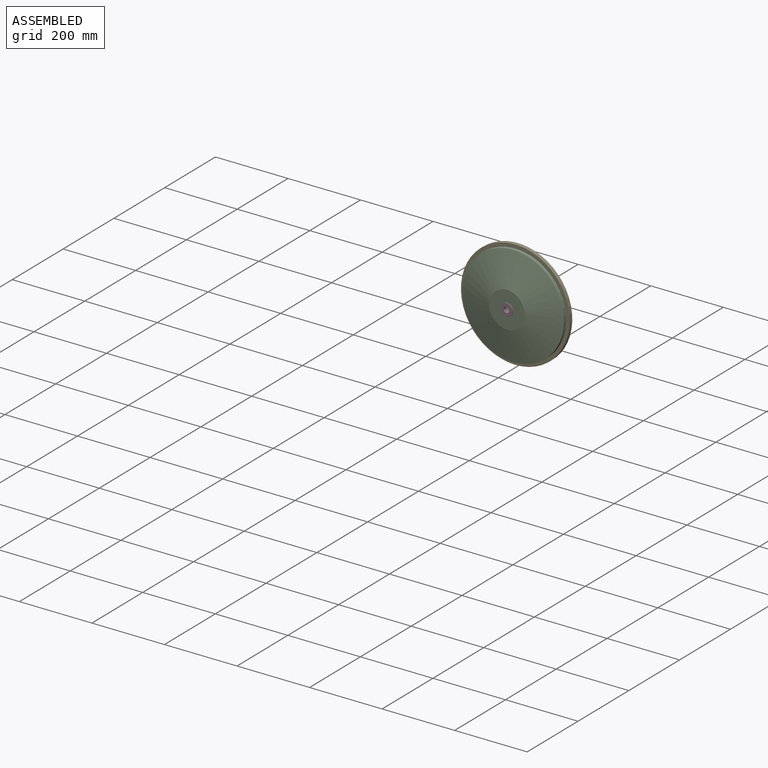
[diagram: assembled view]
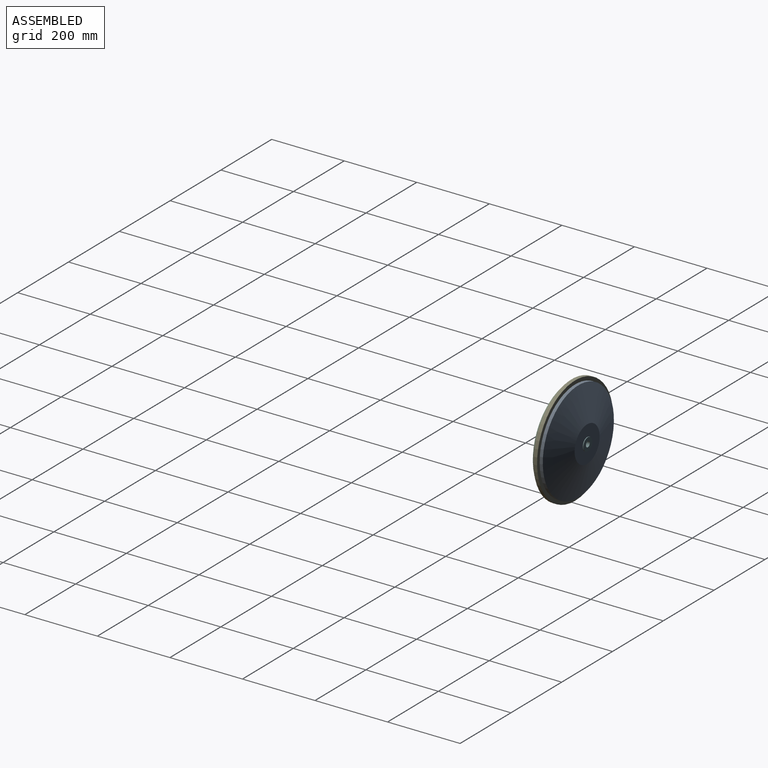
[diagram: assembled view, second angle]
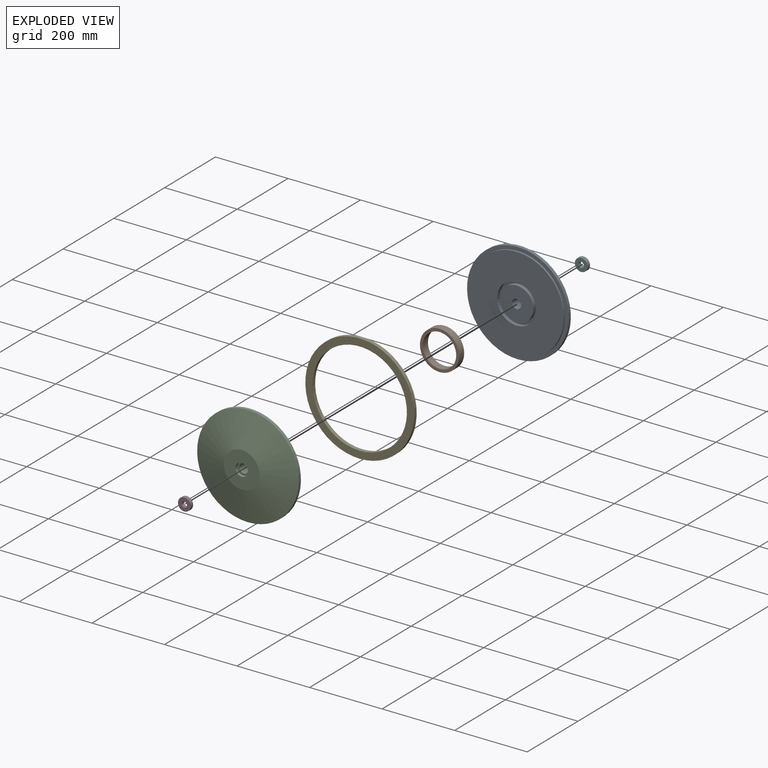
[diagram: exploded view]
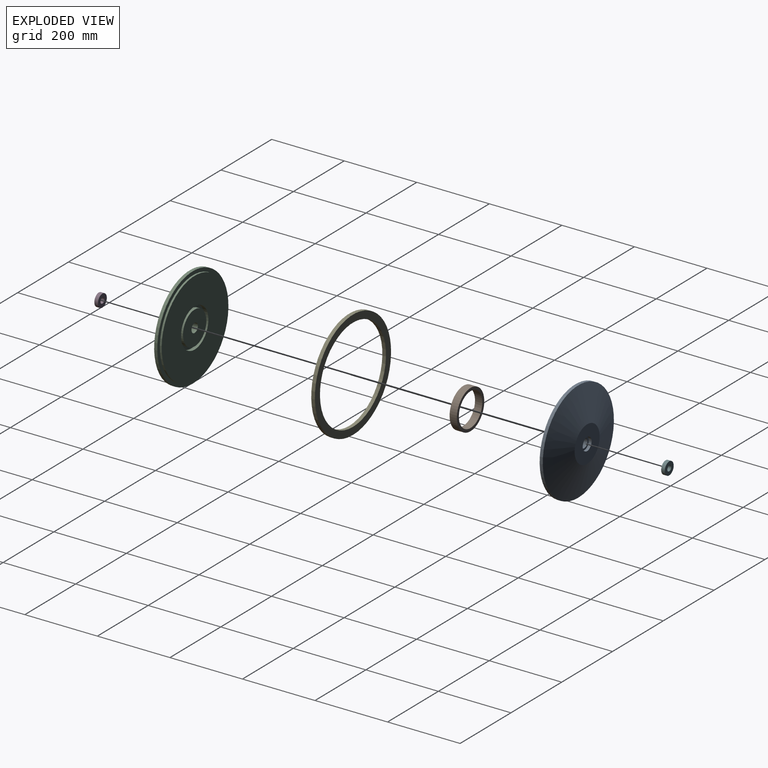
[diagram: exploded view, second angle]
ASSEMBLY  parts=6 mates=5
PART A: 13 faces, bbox 280x38x280 mm
  f0: cylinder r=17.5mm len=35mm, axis (0,-1,0), area 879.6mm2, adj f1,f12
  f1: plane 98.66x98.66mm, normal (0,1,0), area 6682.6mm2, adj f0,f2
  f2: cone r=140mm half-angle=75deg, axis (0,-1,0), area 55832.9mm2, adj f1,f3
  f3: cylinder r=140mm len=280mm, axis (0,-1,0), area 7657.2mm2, adj f2,f4
  f4: plane 280x280mm, normal (0,-1,0), area 8482.3mm2, adj f3,f5
  f5: cylinder r=130mm len=260mm, axis (0,-1,0), area 4084.1mm2, adj f4,f6
  f6: plane 260x260mm, normal (0,-1,0), area 43932mm2, adj f5,f7
  f7: cylinder r=54mm len=108mm, axis (0,-1,0), area 3392.9mm2, adj f6,f8
  f8: plane 108x108mm, normal (0,-1,0), area 2513.3mm2, adj f7,f9
  f9: cylinder r=46mm len=92mm, axis (0,-1,0), area 2890.3mm2, adj f8,f10
  f10: plane 92x92mm, normal (0,-1,0), area 6156.7mm2, adj f9,f11
  f11: cylinder r=12.5mm len=30mm, axis (0,-1,0), area 2356.2mm2, adj f10,f12
  f12: plane 35x35mm, normal (0,1,0), area 471.2mm2, adj f0,f11
PART B: 4 faces, bbox 108x20x108 mm
  f0: plane 108x108mm, normal (0,1,0), area 2513.3mm2, adj f1,f3
  f1: cylinder r=54mm len=108mm, axis (0,-1,0), area 6785.8mm2, adj f0,f2
  f2: plane 108x108mm, normal (0,-1,0), area 2513.3mm2, adj f1,f3
  f3: cylinder r=46mm len=92mm, axis (0,-1,0), area 5780.5mm2, adj f0,f2
PART C: 13 faces, bbox 280x38x280 mm
  f0: cylinder r=17.5mm len=35mm, axis (0,1,0), area 879.6mm2, adj f1,f12
  f1: plane 98.66x98.66mm, normal (0,-1,0), area 6682.6mm2, adj f0,f2
  f2: cone r=140mm half-angle=75deg, axis (0,1,0), area 55832.9mm2, adj f1,f3
  f3: cylinder r=140mm len=280mm, axis (0,1,0), area 7657.2mm2, adj f2,f4
  f4: plane 280x280mm, normal (0,1,0), area 8482.3mm2, adj f3,f5
  f5: cylinder r=130mm len=260mm, axis (0,1,0), area 4084.1mm2, adj f4,f6
  f6: plane 260x260mm, normal (0,1,0), area 43932mm2, adj f5,f7
  f7: cylinder r=54mm len=108mm, axis (0,1,0), area 3392.9mm2, adj f6,f8
  f8: plane 108x108mm, normal (0,1,0), area 2513.3mm2, adj f7,f9
  f9: cylinder r=46mm len=92mm, axis (0,1,0), area 2890.3mm2, adj f8,f10
  f10: plane 92x92mm, normal (0,1,0), area 6156.7mm2, adj f9,f11
  f11: cylinder r=12.5mm len=30mm, axis (0,1,0), area 2356.2mm2, adj f10,f12
  f12: plane 35x35mm, normal (0,-1,0), area 471.2mm2, adj f0,f11
PART D: 4 faces, bbox 35x10x35 mm
  f0: cylinder r=17.5mm len=35mm, axis (0,1,0), area 1099.6mm2, adj f1,f3
  f1: plane 35x35mm, normal (0,1,0), area 785.4mm2, adj f0,f2
  f2: cylinder r=7.5mm len=15mm, axis (0,1,0), area 471.2mm2, adj f1,f3
  f3: plane 35x35mm, normal (0,-1,0), area 785.4mm2, adj f0,f2
PART E: 4 faces, bbox 300x10x300 mm
  f0: cylinder r=130mm len=260mm, axis (0,-1,0), area 8168.1mm2, adj f1,f3
  f1: plane 300x300mm, normal (0,1,0), area 17592.9mm2, adj f0,f2
  f2: cylinder r=150mm len=300mm, axis (0,-1,0), area 9424.8mm2, adj f1,f3
  f3: plane 300x300mm, normal (0,-1,0), area 17592.9mm2, adj f0,f2
PART F: 4 faces, bbox 35x10x35 mm
  f0: cylinder r=17.5mm len=35mm, axis (0,-1,0), area 1099.6mm2, adj f1,f3
  f1: plane 35x35mm, normal (0,-1,0), area 785.4mm2, adj f0,f2
  f2: cylinder r=7.5mm len=15mm, axis (0,-1,0), area 471.2mm2, adj f1,f3
  f3: plane 35x35mm, normal (0,1,0), area 785.4mm2, adj f0,f2
PLACE A t=(0,112.06,0)mm
PLACE B t=(0,112.06,0)mm
PLACE C t=(0,112.06,0)mm
PLACE D t=(0,112.06,0)mm
PLACE E t=(0,112.06,0)mm
PLACE F t=(0,112.06,0)mm
MATE fastened B.f1 <-> C.f0  axis (0,-1,0) through (0,62.06,0)mm
MATE fastened E.f0 <-> A.f0  axis (0,1,0) through (0,77.06,0)mm
MATE fastened F.f0 <-> A.f0  axis (0,-1,0) through (0,102.06,0)mm
MATE fastened D.f0 <-> C.f0  axis (0,1,0) through (0,42.06,0)mm
MATE fastened B.f1 <-> A.f0  axis (0,1,0) through (0,82.06,0)mm
